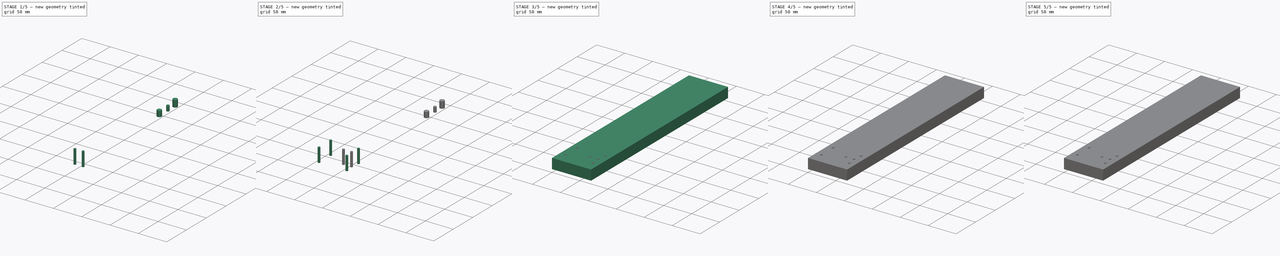
[diagram: build sequence overview — one tinted view per stage of 5, left to right]
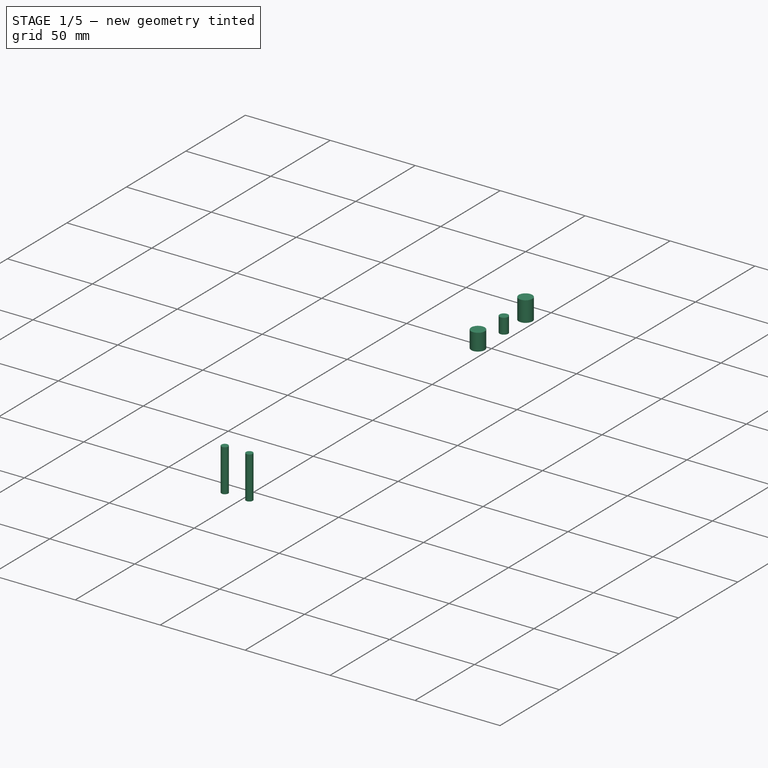
[diagram: stage 1 of 5 — iso view after this stage's code; geometry added in this stage tinted green]
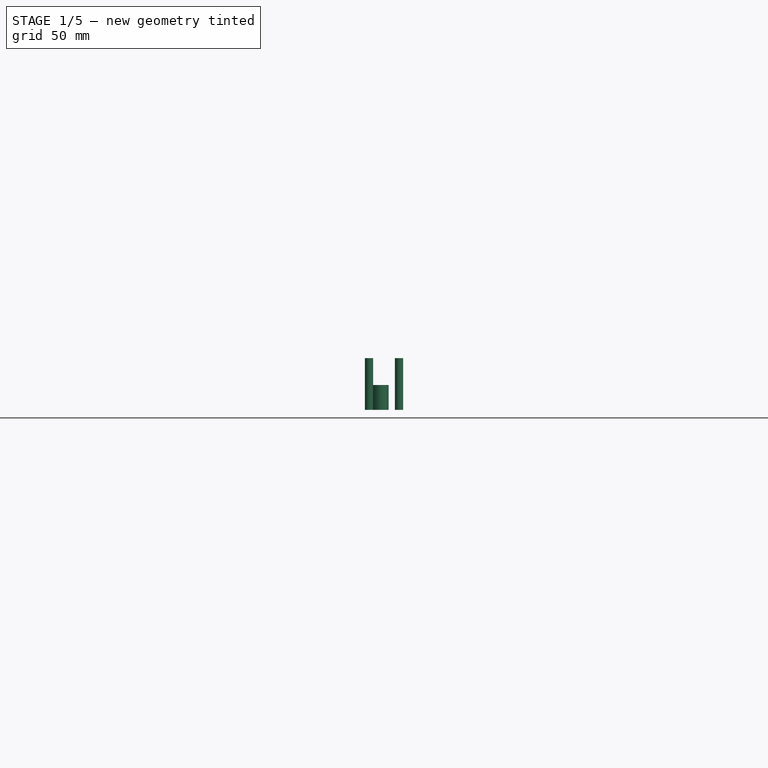
[diagram: stage 1 of 5 — front view after this stage's code; geometry added in this stage tinted green]
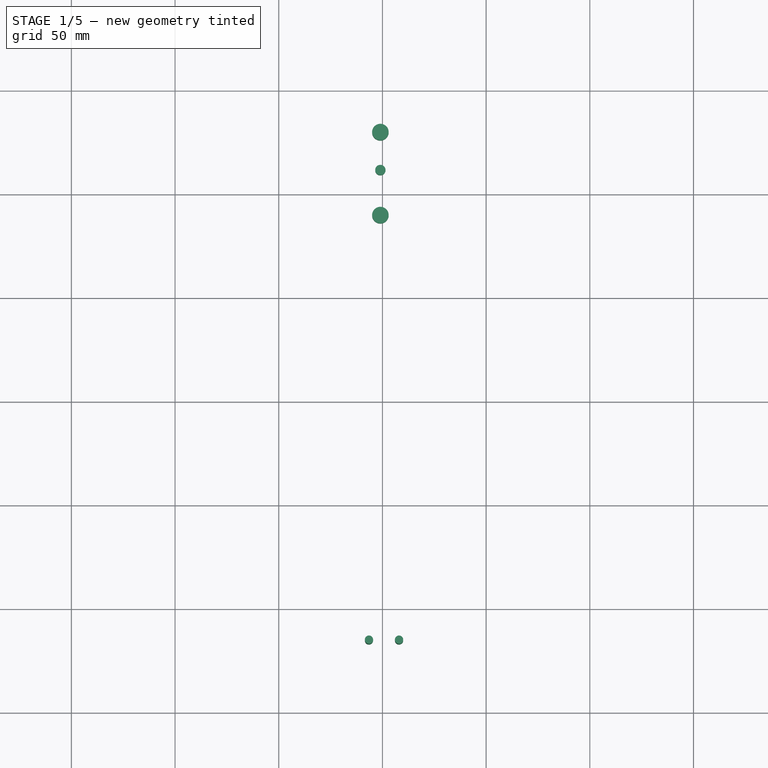
[diagram: stage 1 of 5 — top view after this stage's code; geometry added in this stage tinted green]
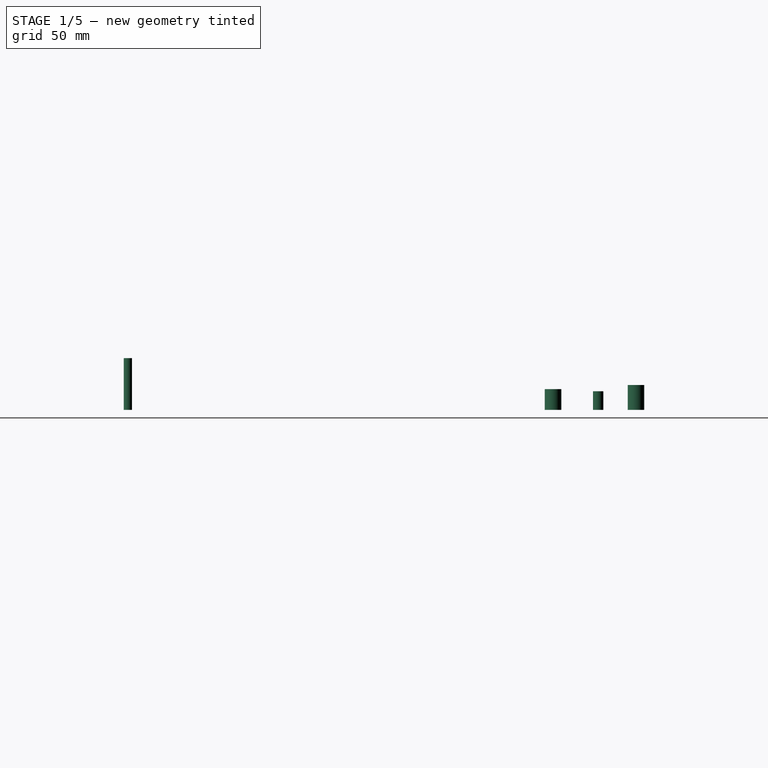
[diagram: stage 1 of 5 — right view after this stage's code; geometry added in this stage tinted green]
FCSTD DOCUMENT  (FreeCAD 0.17R13541 (Git))
Label: X-Derecha
License: All rights reserved
LicenseURL: http://en.wikipedia.org/wiki/All_rights_reserved
objects: Part::Cylinder×13, Part::Cut×9, Part::MultiFuse×4, Sketcher::SketchObject×1, PartDesign::Pad×1, PartDesign::Body×1, Part::Box×1, Part::FeaturePython×1, Part::Feature×1
note: 33 computed .brp shape members not serialized (recipe doc carries the construction recipe); baked Part::Feature solids carry a one-line shape summary decoded from their .brp

FEATURE [Part::Cylinder] Cylinder004  label="Cilindro004"
  Angle = 360
  AttacherType = Attacher::AttachEngine3D
  Height = 25
  Placement = pos=(43.5,35,0) rot=(0,0,1;0rad)
  Radius = 2
FEATURE [Part::Cylinder] Cylinder005  label="Cilindro005"
  Angle = 360
  AttacherType = Attacher::AttachEngine3D
  Height = 25
  Placement = pos=(58,35,0) rot=(0,0,1;0rad)
  Radius = 2
FEATURE [Part::MultiFuse] Fusion003
  Refine = true
  Shapes = -> [Cylinder004,Cylinder005]
FEATURE [Part::Cylinder] Cylinder006  label="Cilindro006"
  Angle = 360
  AttacherType = Attacher::AttachEngine3D
  Height = 10
  Placement = pos=(49,240,0) rot=(0,0,1;0rad)
  Radius = 4
FEATURE [Part::Cylinder] Cylinder010  label="Cilindro010"
  Angle = 360
  AttacherType = Attacher::AttachEngine3D
  Height = 12
  Placement = pos=(49,280,0) rot=(0,0,1;0rad)
  Radius = 4
FEATURE [Part::Cylinder] Cylinder011  label="Cilindro011"
  Angle = 360
  AttacherType = Attacher::AttachEngine3D
  Height = 9
  Placement = pos=(49,261.75,0) rot=(0,0,1;0rad)
  Radius = 2.5
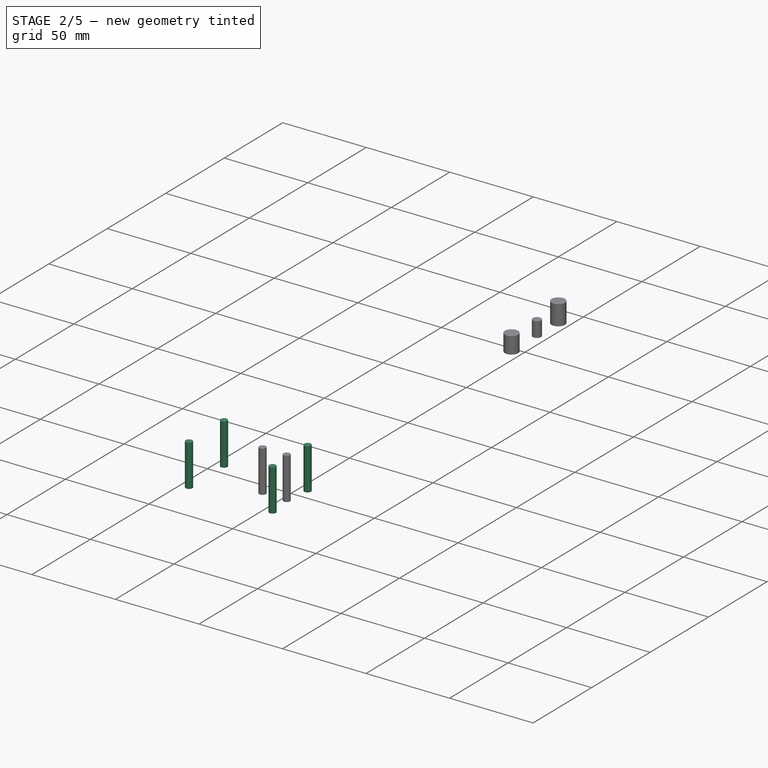
[diagram: stage 2 of 5 — iso view after this stage's code; geometry added in this stage tinted green]
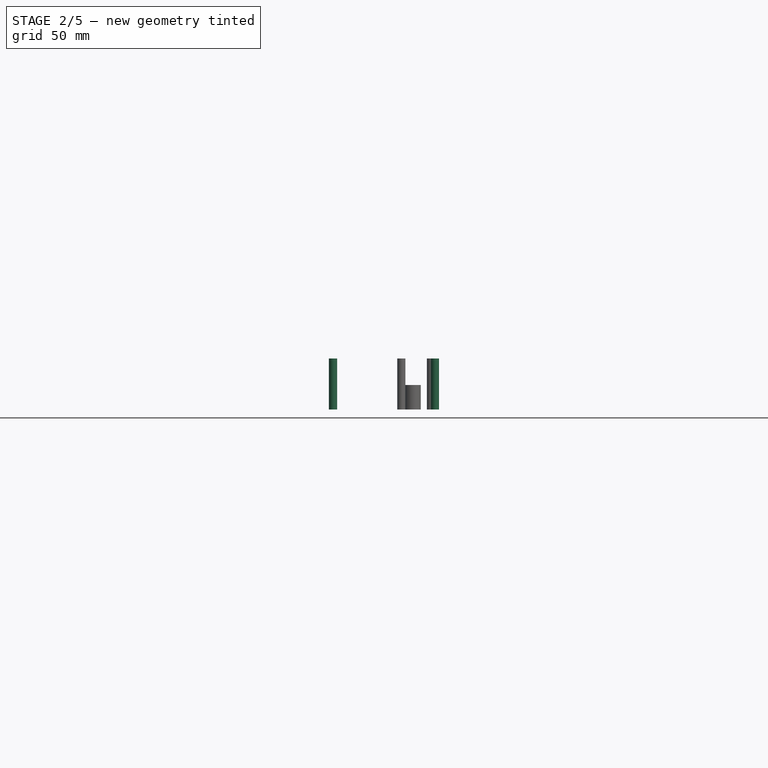
[diagram: stage 2 of 5 — front view after this stage's code; geometry added in this stage tinted green]
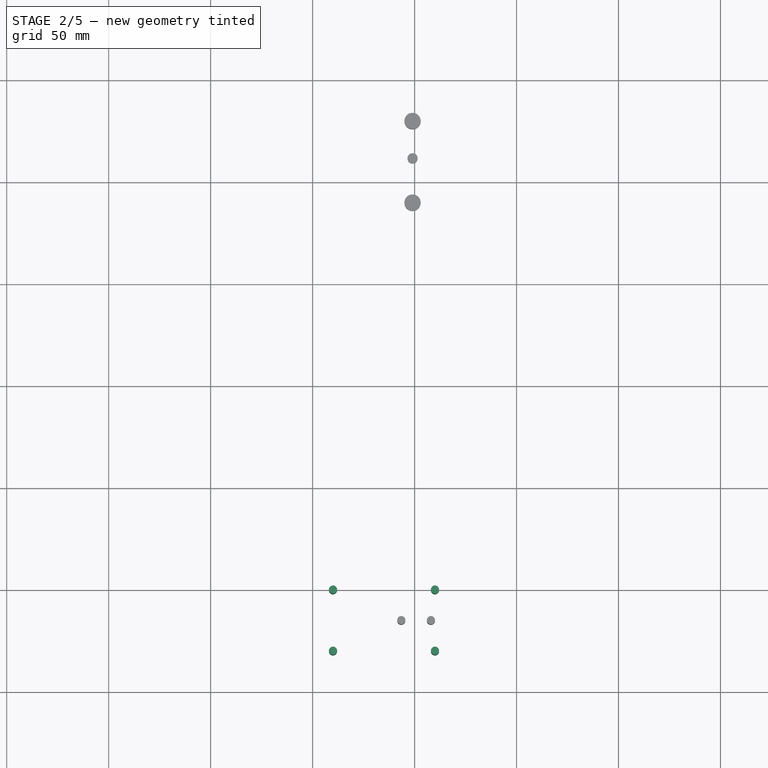
[diagram: stage 2 of 5 — top view after this stage's code; geometry added in this stage tinted green]
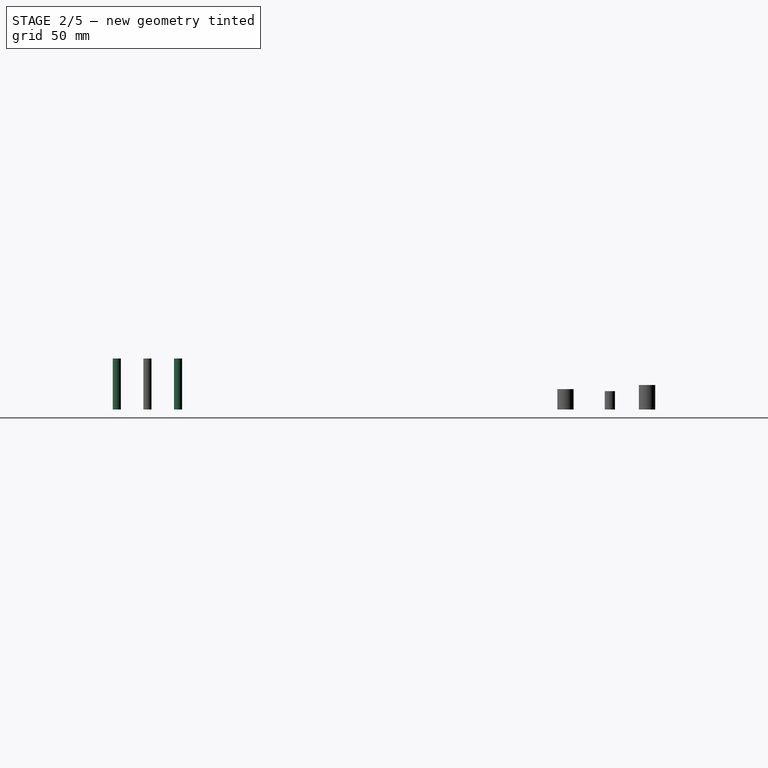
[diagram: stage 2 of 5 — right view after this stage's code; geometry added in this stage tinted green]
FEATURE [Part::Cylinder] Cylinder  label="Cilindro"
  Angle = 360
  AttacherType = Attacher::AttachEngine3D
  Height = 25
  Placement = pos=(10,20,0) rot=(0,0,1;0rad)
  Radius = 2
FEATURE [Part::Cylinder] Cylinder001  label="Cilindro001"
  Angle = 360
  AttacherType = Attacher::AttachEngine3D
  Height = 25
  Placement = pos=(10,50,0) rot=(0,0,1;0rad)
  Radius = 2
FEATURE [Part::MultiFuse] Fusion
  Refine = true
  Shapes = -> [Cylinder,Cylinder001]
FEATURE [Part::Cylinder] Cylinder002  label="Cilindro002"
  Angle = 360
  AttacherType = Attacher::AttachEngine3D
  Height = 25
  Placement = pos=(10,20,0) rot=(0,0,1;0rad)
  Radius = 2
FEATURE [Part::Cylinder] Cylinder003  label="Cilindro003"
  Angle = 360
  AttacherType = Attacher::AttachEngine3D
  Height = 25
  Placement = pos=(10,50,0) rot=(0,0,1;0rad)
  Radius = 2
FEATURE [Part::MultiFuse] Fusion001
  Placement = pos=(50,0,0) rot=(0,0,1;0rad)
  Refine = true
  Shapes = -> [Cylinder002,Cylinder003]
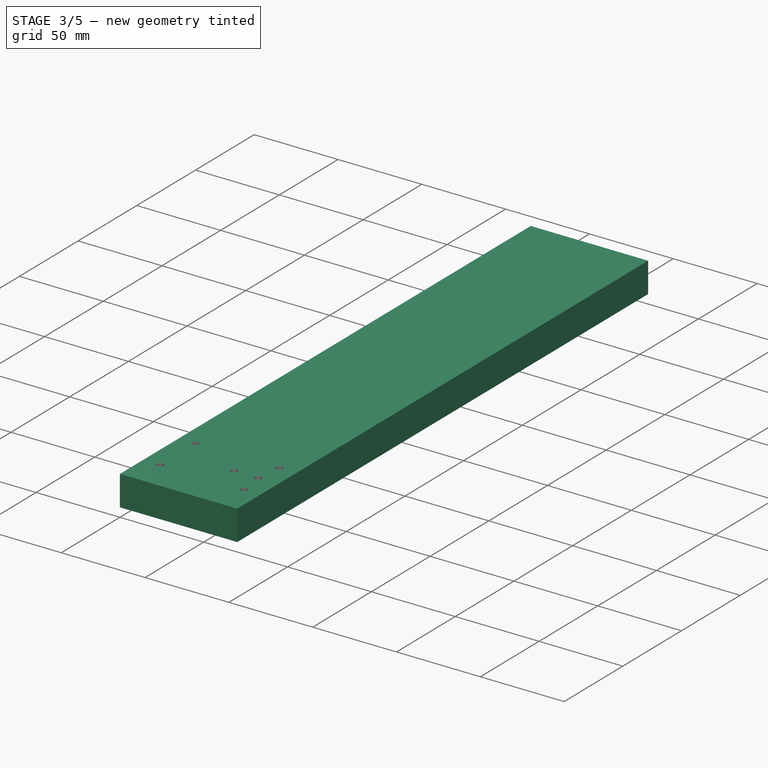
[diagram: stage 3 of 5 — iso view after this stage's code; geometry added in this stage tinted green]
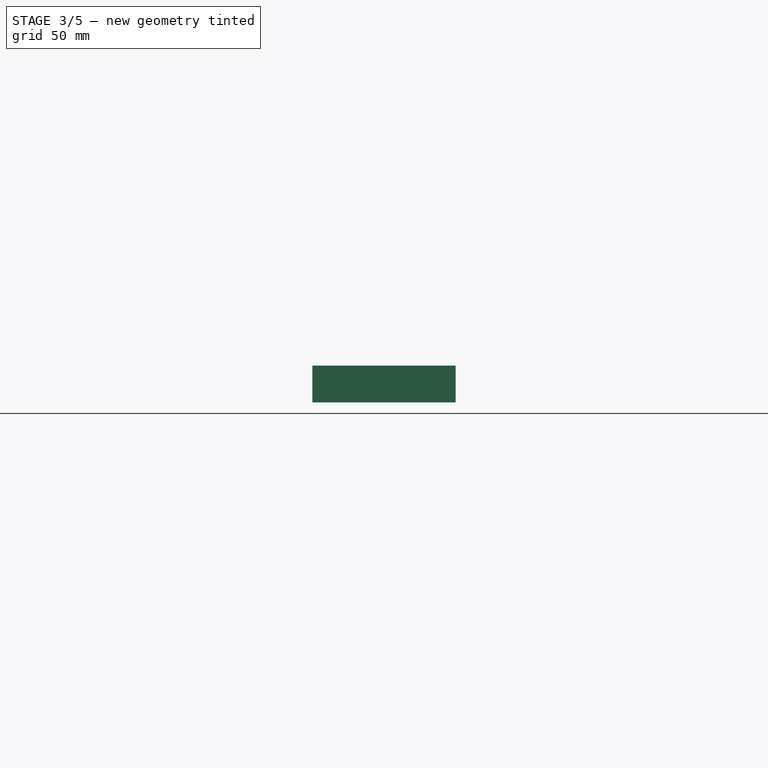
[diagram: stage 3 of 5 — front view after this stage's code; geometry added in this stage tinted green]
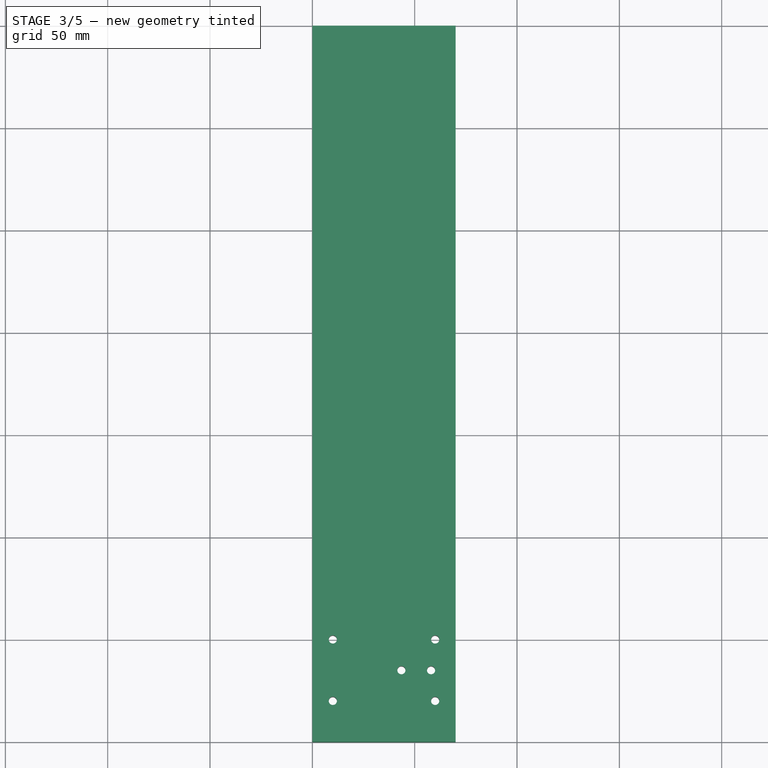
[diagram: stage 3 of 5 — top view after this stage's code; geometry added in this stage tinted green]
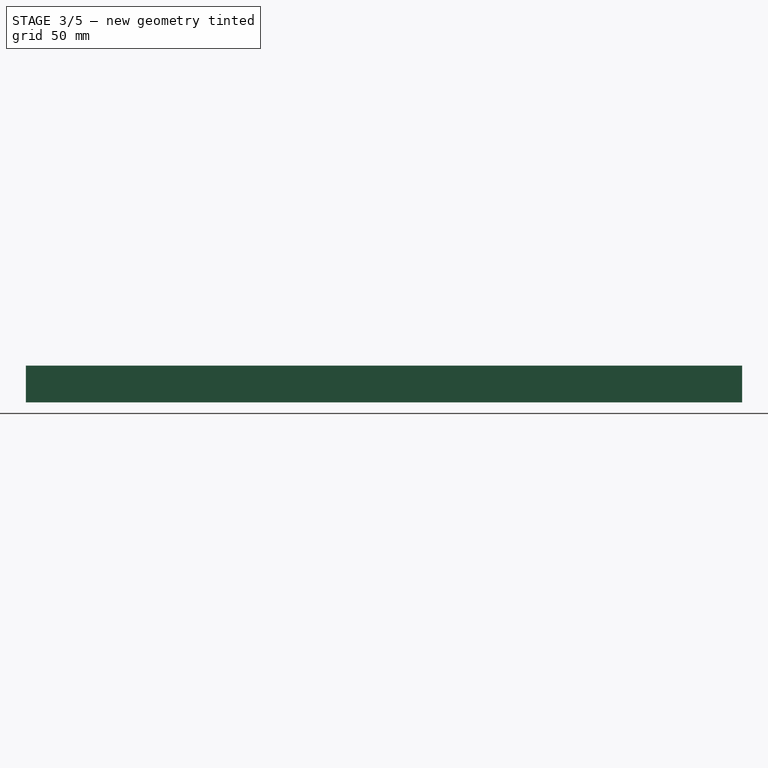
[diagram: stage 3 of 5 — right view after this stage's code; geometry added in this stage tinted green]
FEATURE [PartDesign::Body] Body  label="Hueco"
  Group = -> [Sketch,Pad]
  Origin = -> Origin
  Placement = pos=(49,280,0) rot=(0,0,1;0rad)
  Tip = -> Pad
FEATURE [Part::Box] Box  label="Cubo"
  AttacherType = Attacher::AttachEngine3D
  Height = 18
  Length = 70
  Width = 350
FEATURE [Part::MultiFuse] Fusion002
  Refine = true
  Shapes = -> [Fusion001,Fusion]
FEATURE [Part::FeaturePython] BooleanFragments  # WARN: FeaturePython — macro-defined, semantics opaque (R4)
  Mode = 0
  Objects = -> [Fusion003,Fusion002]
  Tolerance = 0
FEATURE [Part::Cut] Cut
  Base = -> Box
  Refine = true
  Tool = -> BooleanFragments
FEATURE [Part::Cut] Cut001
  Base = -> Cut
  Refine = true
  Tool = -> Cylinder006
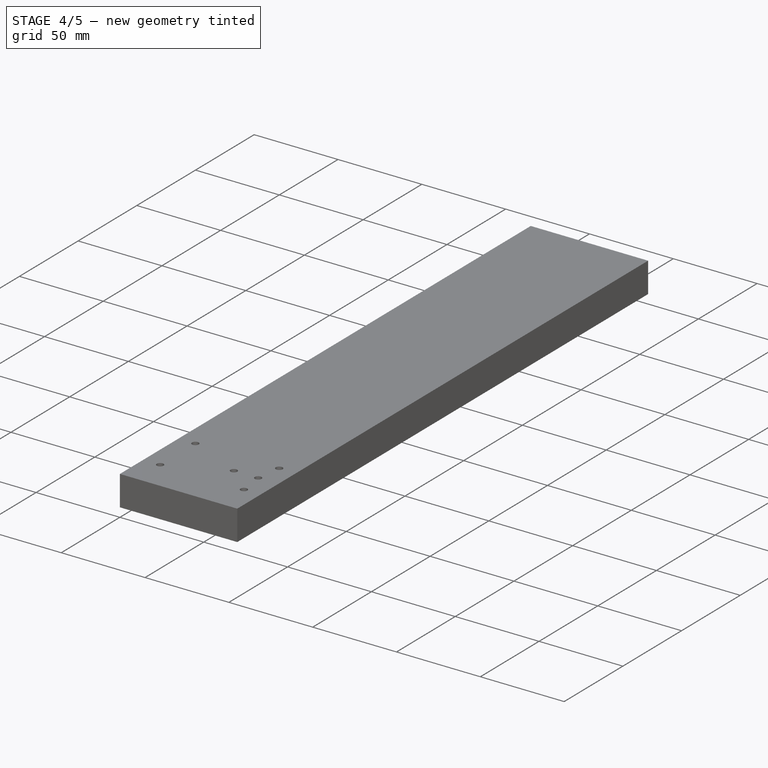
[diagram: stage 4 of 5 — iso view after this stage's code; geometry added in this stage tinted green]
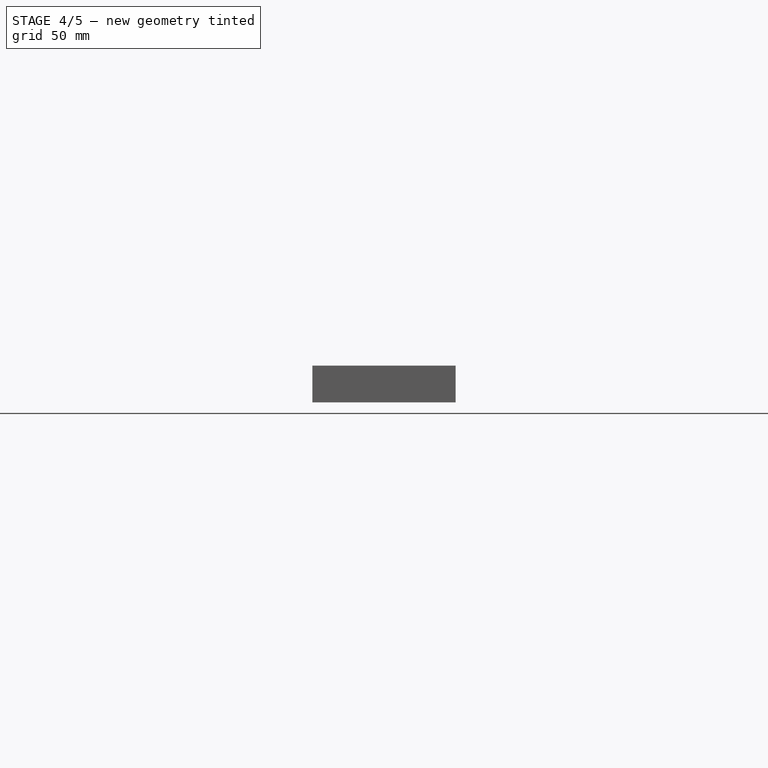
[diagram: stage 4 of 5 — front view after this stage's code; geometry added in this stage tinted green]
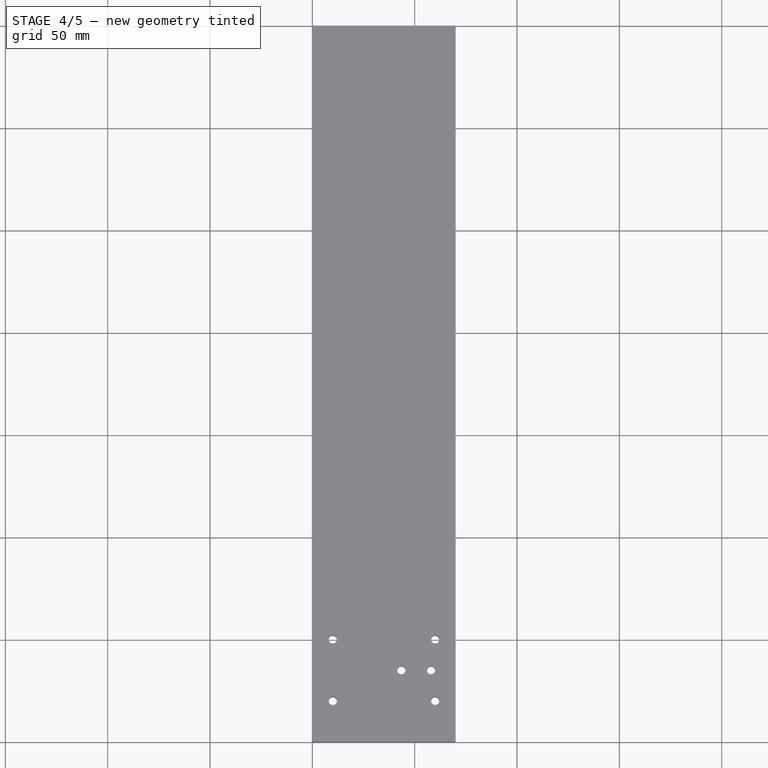
[diagram: stage 4 of 5 — top view after this stage's code; geometry added in this stage tinted green]
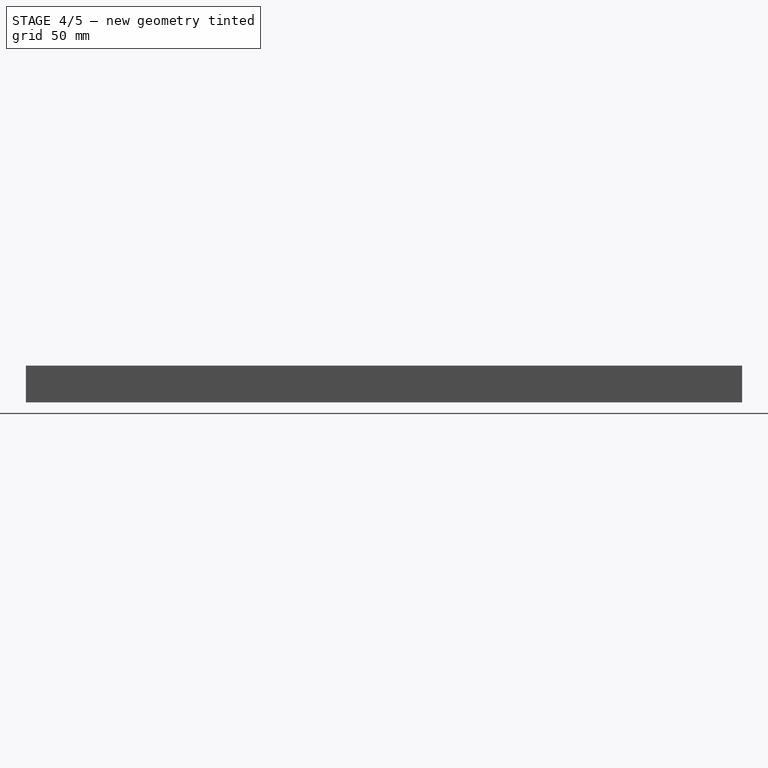
[diagram: stage 4 of 5 — right view after this stage's code; geometry added in this stage tinted green]
FEATURE [Sketcher::SketchObject] Sketch
  MapMode = 5
  Support = -> [XY_Plane]
  sketch-geometry (11):
    g0: ArcOfCircle CenterX=0 CenterY=0 CenterZ=0 NormalX=0 NormalY=0 NormalZ=1 AngleXU=0 Radius=13.5 StartAngle=5.82942 EndAngle=6.73695
    g1: LineSegment StartX=4.94341 StartY=20.661 StartZ=0 EndX=12.1338 EndY=5.91781 EndZ=0
    g2: LineSegment StartX=-4.94341 StartY=20.661 StartZ=0 EndX=-12.1338 EndY=5.91781 EndZ=0
    g3: LineSegment StartX=4.94341 StartY=-20.661 StartZ=0 EndX=12.1338 EndY=-5.91781 EndZ=0
    g4: LineSegment StartX=-4.94341 StartY=-20.661 StartZ=0 EndX=-12.1338 EndY=-5.91781 EndZ=0
    g5: ArcOfCircle CenterX=0 CenterY=-18.25 CenterZ=0 NormalX=0 NormalY=0 NormalZ=1 AngleXU=0 Radius=5.5 StartAngle=3.59536 EndAngle=5.82942
    g6: ArcOfCircle CenterX=0 CenterY=0 CenterZ=0 NormalX=0 NormalY=0 NormalZ=1 AngleXU=0 Radius=13.5 StartAngle=2.68782 EndAngle=3.59536
    g7: ArcOfCircle CenterX=0 CenterY=18.25 CenterZ=0 NormalX=0 NormalY=0 NormalZ=1 AngleXU=0 Radius=5.5 StartAngle=0.453769 EndAngle=2.68782
    g8: Circle CenterX=0 CenterY=-18.25 CenterZ=0 NormalX=0 NormalY=0 NormalZ=1 AngleXU=0 Radius=2.5
    g9: Circle CenterX=0 CenterY=18.25 CenterZ=0 NormalX=0 NormalY=0 NormalZ=1 AngleXU=0 Radius=2.5
    g10: Circle CenterX=0 CenterY=0 CenterZ=0 NormalX=0 NormalY=0 NormalZ=1 AngleXU=0 Radius=4
  constraints (18):
    c: Coincident(g0,g-1)
    c: Radius(g0) = 13.5
    c: PointOnObject(g2,g0)
    c: Coincident(g5,g3)
    c: Coincident(g5,g4)
    c: Coincident(g0,g3)
    c: Coincident(g6,g4)
    c: Equal(g0,g6)
    c: Coincident(g0,g6)
    c: Coincident(g7,g2)
    c: Coincident(g7,g1)
    c: Coincident(g0,g1)
    c: Coincident(g8,g5)
    c: Radius(g8) = 2.5
    c: Coincident(g9,g7)
    c: Radius(g9) = 2.5
    c: Coincident(g10,g-1)
    c: Radius(g10) = 4
FEATURE [PartDesign::Pad] Pad
  Length = 9
  Length2 = 100
  Profile = -> Sketch
  Type = 0
FEATURE [Part::Cylinder] Cylinder007  label="Cilindro007"
  Angle = 360
  AttacherType = Attacher::AttachEngine3D
  Height = 10
  Placement = pos=(49,320,0) rot=(0,0,1;0rad)
  Radius = 4
FEATURE [Part::Cylinder] Cylinder008  label="Cilindro008"
  Angle = 360
  AttacherType = Attacher::AttachEngine3D
  Height = 5
  Placement = pos=(49,261.75,9) rot=(0,0,1;0rad)
  Radius = 2
FEATURE [Part::Cut] Cut002
  Base = -> Cut001
  Refine = true
  Tool = -> Cylinder007
FEATURE [Part::Cut] Cut003
  Base = -> Cut002
  Refine = true
  Tool = -> Body
FEATURE [Part::Cut] Cut004
  Base = -> Cut003
  Refine = true
  Tool = -> Cylinder008
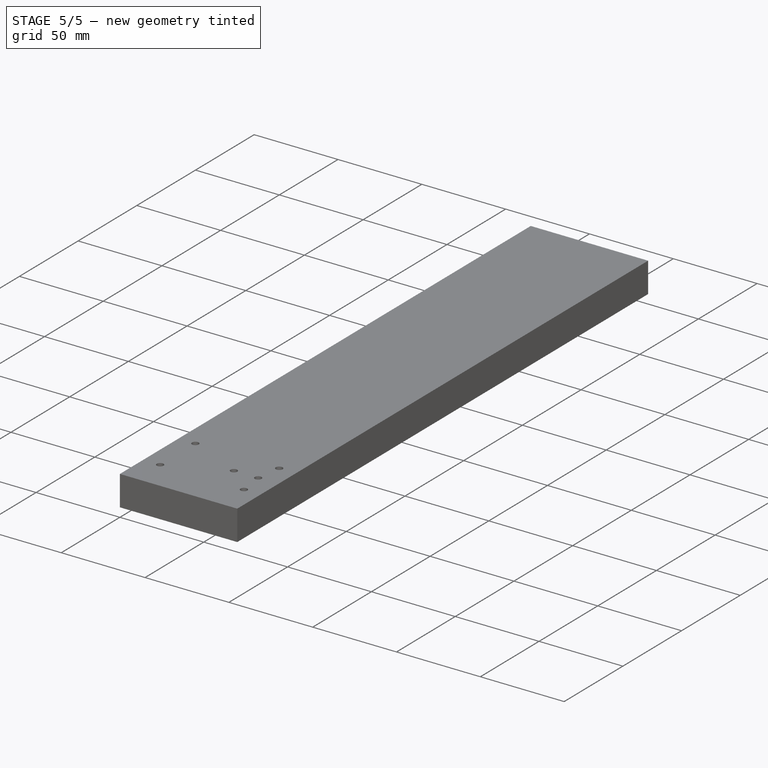
[diagram: stage 5 of 5 — iso view after this stage's code; geometry added in this stage tinted green]
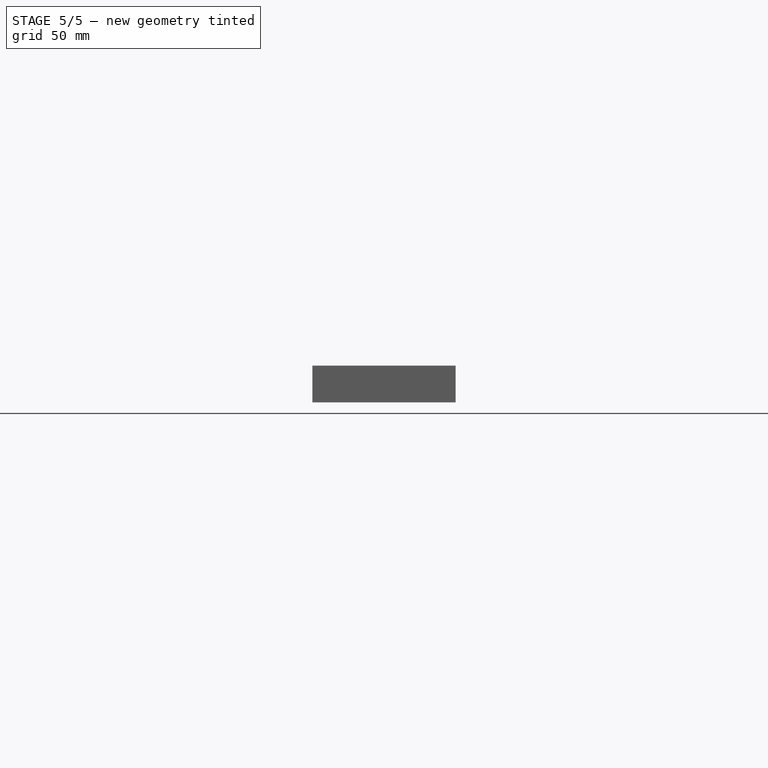
[diagram: stage 5 of 5 — front view after this stage's code; geometry added in this stage tinted green]
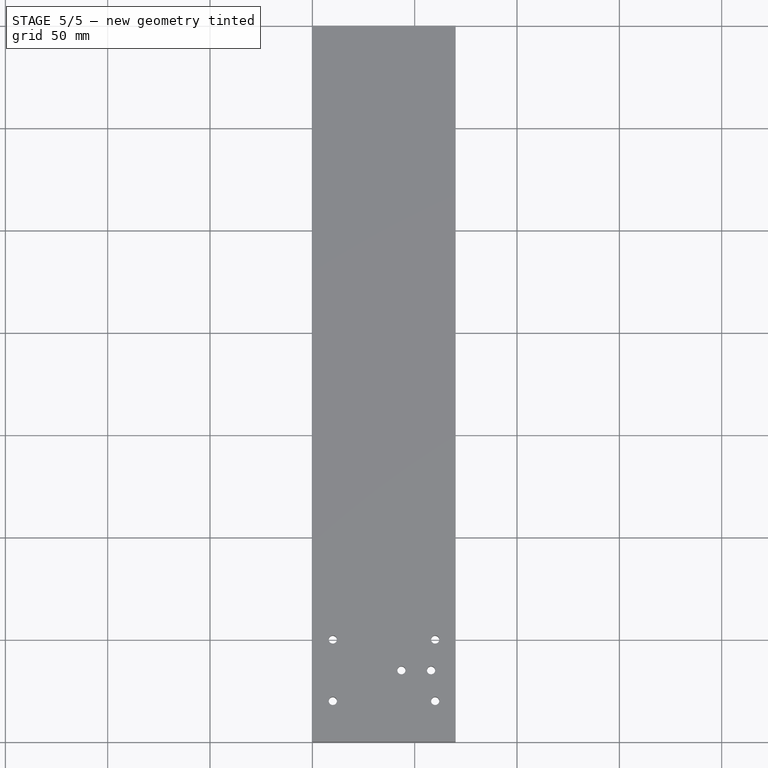
[diagram: stage 5 of 5 — top view after this stage's code; geometry added in this stage tinted green]
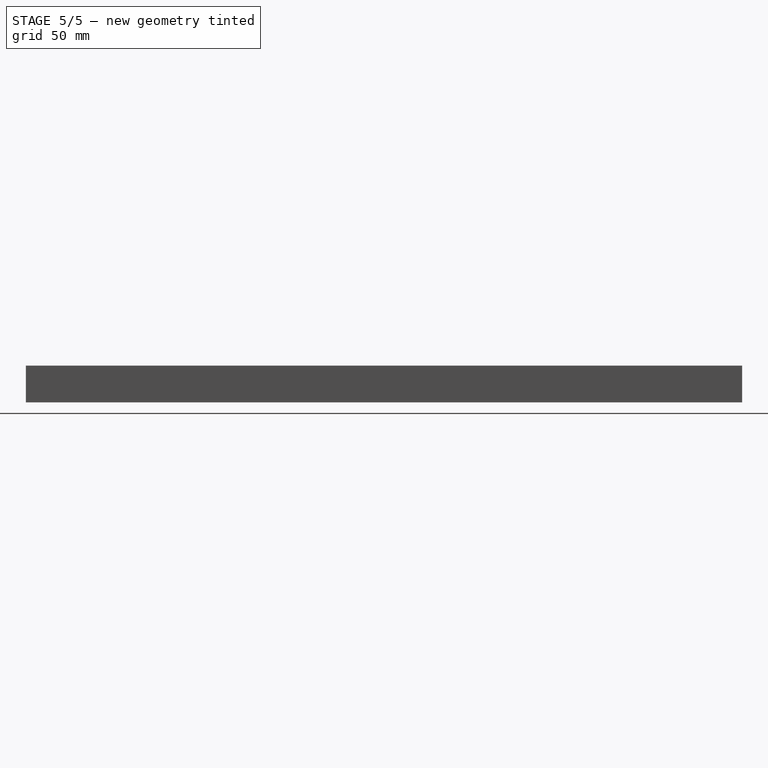
[diagram: stage 5 of 5 — right view after this stage's code; geometry added in this stage tinted green]
FEATURE [Part::Cylinder] Cylinder009  label="Cilindro009"
  Angle = 360
  AttacherType = Attacher::AttachEngine3D
  Height = 5
  Placement = pos=(49,298.25,9) rot=(0,0,1;0rad)
  Radius = 2
FEATURE [Part::Cut] Cut005
  Base = -> Cut004
  Refine = true
  Tool = -> Cylinder009
FEATURE [Part::Cut] Cut006
  Base = -> Cut005
  Refine = true
  Tool = -> Cylinder010
FEATURE [Part::Cylinder] Cylinder012  label="Cilindro012"
  Angle = 360
  AttacherType = Attacher::AttachEngine3D
  Height = 9
  Placement = pos=(49,298.25,0) rot=(0,0,1;0rad)
  Radius = 2.5
FEATURE [Part::Cut] Cut007
  Base = -> Cut006
  Refine = true
  Tool = -> Cylinder011
FEATURE [Part::Cut] Cut008
  Base = -> Cut007
  Refine = true
  Tool = -> Cylinder012
FEATURE [Part::Feature] Cut008001  label="Cut009"
  shape: bbox 70 x 350 x 18 mm, 31 faces (baked)
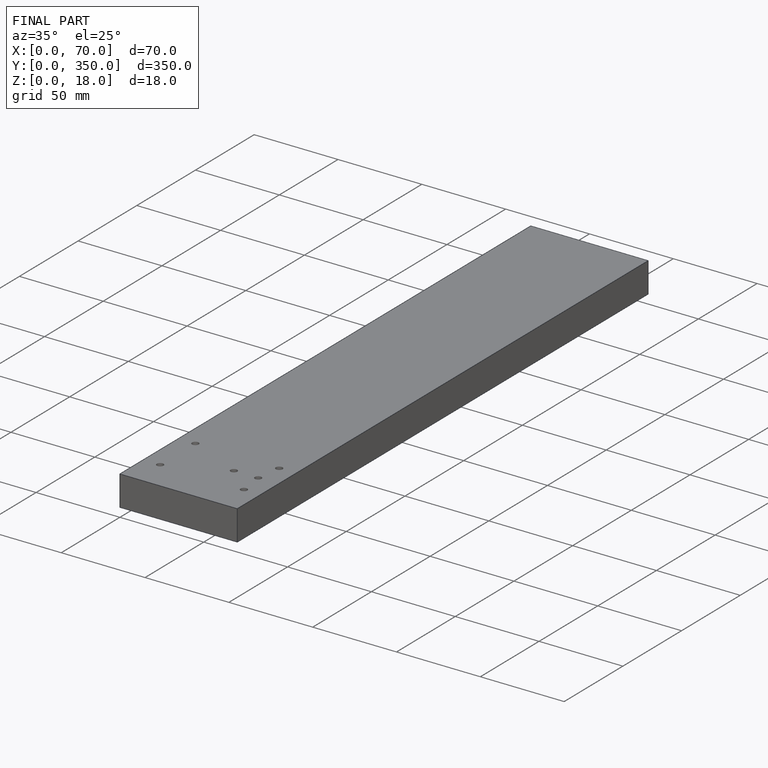
[diagram: finished part — iso view with bounding-box wireframe]
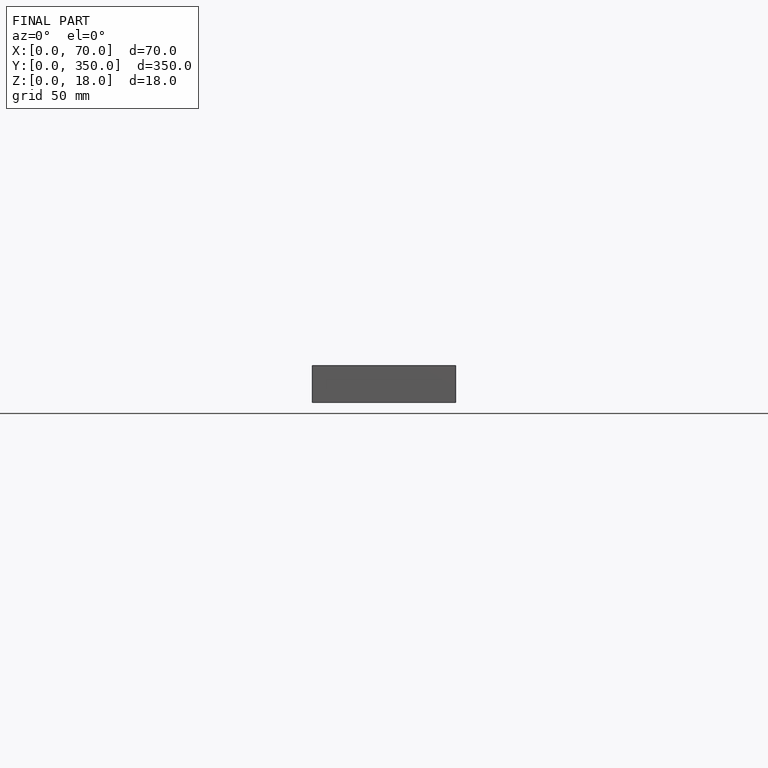
[diagram: finished part — front view with bounding-box wireframe]
